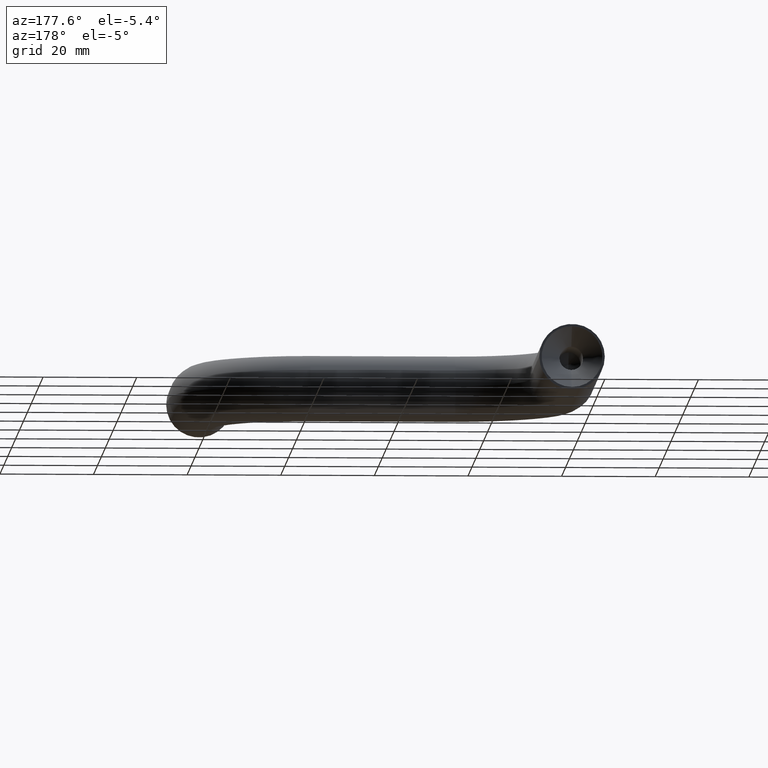
[diagram: clean part render]
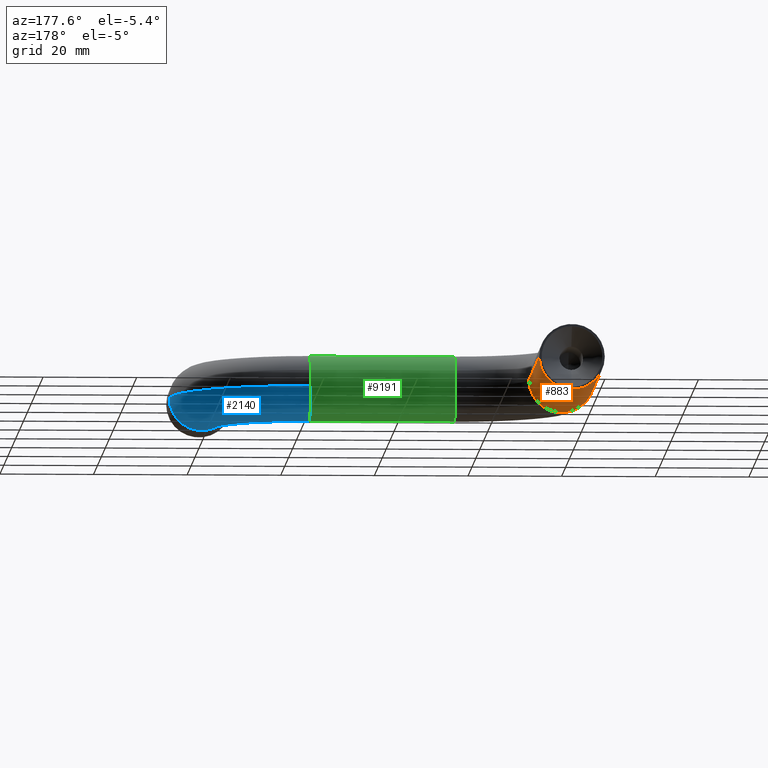
[diagram: same view with three faces highlighted in distinct colors, each labeled with its STEP entity id]
A machine part, auxiliary view with three faces highlighted in distinct colors.
Their STEP definitions:

[orange] entity #883 — the highlighted cylindrical surface (edge-blend (fillet) strip) has radius 7 mm, axis along (0, 1, 0).
#66 = AXIS2_PLACEMENT_3D ( 'NONE', #2268, #1301, #1258 ) ;
#221 = LINE ( 'NONE', #11476, #3020 ) ;
#359 = VERTEX_POINT ( 'NONE', #3684 ) ;
#683 = DIRECTION ( 'NONE',  ( 0.0000000000000000000, 0.0000000000000000000, 1.000000000000000000 ) ) ;
#883 = ADVANCED_FACE ( 'NONE', ( #11358 ), #1655, .T. ) ;
#1107 = VERTEX_POINT ( 'NONE', #9374 ) ;
#1258 = DIRECTION ( 'NONE',  ( -1.000000000000000000, 0.0000000000000000000, 0.0000000000000000000 ) ) ;
#1301 = DIRECTION ( 'NONE',  ( 2.618450529776312300E-016, 1.000000000000000000, 0.0000000000000000000 ) ) ;
#1397 = EDGE_CURVE ( 'NONE', #6293, #1990, #4423, .T. ) ;
#1655 = CYLINDRICAL_SURFACE ( 'NONE', #66, 7.000000000000006200 ) ;
#1746 = EDGE_CURVE ( 'NONE', #1107, #1990, #9575, .T. ) ;
#1842 = CARTESIAN_POINT ( 'NONE',  ( -81.99999999999997200, 112.4999999999999900, 0.0000000000000000000 ) ) ;
#1990 = VERTEX_POINT ( 'NONE', #1842 ) ;
#2125 = CIRCLE ( 'NONE', #9813, 7.000000000000000000 ) ;
#2268 = CARTESIAN_POINT ( 'NONE',  ( -74.99999999999998600, 59.49999999999998600, 0.0000000000000000000 ) ) ;
#2887 = AXIS2_PLACEMENT_3D ( 'NONE', #12515, #10519, #8529 ) ;
#3020 = VECTOR ( 'NONE', #6181, 1000.000000000000000 ) ;
#3684 = CARTESIAN_POINT ( 'NONE',  ( -67.99999999999997200, 59.49999999999998600, 8.572527594031463300E-016 ) ) ;
#4181 = EDGE_LOOP ( 'NONE', ( #10737, #13306, #8523, #13182 ) ) ;
#4423 = LINE ( 'NONE', #13014, #12332 ) ;
#6181 = DIRECTION ( 'NONE',  ( 2.618450529776312300E-016, 1.000000000000000000, 0.0000000000000000000 ) ) ;
#6293 = VERTEX_POINT ( 'NONE', #8088 ) ;
#8042 = EDGE_CURVE ( 'NONE', #359, #6293, #2125, .T. ) ;
#8088 = CARTESIAN_POINT ( 'NONE',  ( -81.99999999999998600, 59.49999999999998600, 0.0000000000000000000 ) ) ;
#8523 = ORIENTED_EDGE ( 'NONE', *, *, #1397, .T. ) ;
#8529 = DIRECTION ( 'NONE',  ( 0.0000000000000000000, 0.0000000000000000000, 1.000000000000000000 ) ) ;
#8828 = DIRECTION ( 'NONE',  ( 2.618450529776312300E-016, 1.000000000000000000, 0.0000000000000000000 ) ) ;
#9115 = CARTESIAN_POINT ( 'NONE',  ( -74.99999999999998600, 59.49999999999998600, 0.0000000000000000000 ) ) ;
#9374 = CARTESIAN_POINT ( 'NONE',  ( -67.99999999999995700, 112.4999999999999900, 8.572527594031480100E-016 ) ) ;
#9575 = CIRCLE ( 'NONE', #2887, 7.000000000000000000 ) ;
#9813 = AXIS2_PLACEMENT_3D ( 'NONE', #9115, #11101, #683 ) ;
#10519 = DIRECTION ( 'NONE',  ( -2.220446049250313100E-016, 1.000000000000000000, 0.0000000000000000000 ) ) ;
#10737 = ORIENTED_EDGE ( 'NONE', *, *, #12192, .F. ) ;
#11101 = DIRECTION ( 'NONE',  ( -2.220446049250313100E-016, 1.000000000000000000, 0.0000000000000000000 ) ) ;
#11358 = FACE_OUTER_BOUND ( 'NONE', #4181, .T. ) ;
#11476 = CARTESIAN_POINT ( 'NONE',  ( -67.99999999999997200, 59.49999999999998600, 8.572527594031471200E-016 ) ) ;
#12192 = EDGE_CURVE ( 'NONE', #359, #1107, #221, .T. ) ;
#12332 = VECTOR ( 'NONE', #8828, 1000.000000000000000 ) ;
#12515 = CARTESIAN_POINT ( 'NONE',  ( -74.99999999999997200, 112.4999999999999900, 0.0000000000000000000 ) ) ;
#13014 = CARTESIAN_POINT ( 'NONE',  ( -81.99999999999998600, 59.49999999999998600, 0.0000000000000000000 ) ) ;
#13182 = ORIENTED_EDGE ( 'NONE', *, *, #1746, .F. ) ;
#13306 = ORIENTED_EDGE ( 'NONE', *, *, #8042, .T. ) ;

[blue] entity #2140 — the highlighted toroidal blend (fillet) surface has major radius 22 mm and minor (blend) radius 7 mm.
#42 = DIRECTION ( 'NONE',  ( -1.000000000000000000, -1.608122649676636600E-016, 0.0000000000000000000 ) ) ;
#117 = VERTEX_POINT ( 'NONE', #11253 ) ;
#126 = ORIENTED_EDGE ( 'NONE', *, *, #10932, .F. ) ;
#173 = AXIS2_PLACEMENT_3D ( 'NONE', #8949, #782, #12112 ) ;
#325 = AXIS2_PLACEMENT_3D ( 'NONE', #10674, #1445, #11765 ) ;
#782 = DIRECTION ( 'NONE',  ( 0.0000000000000000000, 0.0000000000000000000, 1.000000000000000000 ) ) ;
#1251 = EDGE_CURVE ( 'NONE', #11029, #5518, #6324, .T. ) ;
#1445 = DIRECTION ( 'NONE',  ( -1.000000000000000000, -1.608122649676636600E-016, 0.0000000000000000000 ) ) ;
#1639 = CARTESIAN_POINT ( 'NONE',  ( -7.000000000000000000, 15.50000000000000000, 8.572527594031473200E-016 ) ) ;
#2140 = ADVANCED_FACE ( 'NONE', ( #12769 ), #5191, .T. ) ;
#3224 = CARTESIAN_POINT ( 'NONE',  ( -22.00000000000000400, 30.50000000000000700, -8.572527594031470200E-016 ) ) ;
#3308 = ORIENTED_EDGE ( 'NONE', *, *, #1251, .F. ) ;
#3814 = DIRECTION ( 'NONE',  ( 0.0000000000000000000, 0.0000000000000000000, 1.000000000000000000 ) ) ;
#3854 = DIRECTION ( 'NONE',  ( 1.000000000000000000, 0.0000000000000000000, 0.0000000000000000000 ) ) ;
#4342 = ORIENTED_EDGE ( 'NONE', *, *, #10134, .T. ) ;
#4668 = DIRECTION ( 'NONE',  ( 0.0000000000000000000, 0.0000000000000000000, 1.000000000000000000 ) ) ;
#5015 = CARTESIAN_POINT ( 'NONE',  ( -6.404881882659701700E-017, 15.50000000000000000, 0.0000000000000000000 ) ) ;
#5191 = TOROIDAL_SURFACE ( 'NONE', #10983, 22.00000000000000000, 7.000000000000000000 ) ;
#5284 = CIRCLE ( 'NONE', #10784, 7.000000000000000000 ) ;
#5391 = ORIENTED_EDGE ( 'NONE', *, *, #5645, .T. ) ;
#5518 = VERTEX_POINT ( 'NONE', #6062 ) ;
#5584 = CARTESIAN_POINT ( 'NONE',  ( -22.00000000000000000, 15.50000000000000000, -8.572527594031473200E-016 ) ) ;
#5602 = CIRCLE ( 'NONE', #173, 28.99999999999999600 ) ;
#5645 = EDGE_CURVE ( 'NONE', #117, #11387, #6001, .T. ) ;
#6001 = CIRCLE ( 'NONE', #9793, 7.000000000000000000 ) ;
#6062 = CARTESIAN_POINT ( 'NONE',  ( -22.00000000000000400, 37.50000000000000700, -7.000000000000000000 ) ) ;
#6324 = CIRCLE ( 'NONE', #325, 7.000000000000000000 ) ;
#6892 = VERTEX_POINT ( 'NONE', #3224 ) ;
#8158 = CARTESIAN_POINT ( 'NONE',  ( -22.00000000000000400, 37.50000000000000700, 0.0000000000000000000 ) ) ;
#8285 = CIRCLE ( 'NONE', #11808, 15.00000000000000000 ) ;
#8643 = ORIENTED_EDGE ( 'NONE', *, *, #11602, .F. ) ;
#8949 = CARTESIAN_POINT ( 'NONE',  ( -22.00000000000000000, 15.50000000000000000, 0.0000000000000000000 ) ) ;
#9793 = AXIS2_PLACEMENT_3D ( 'NONE', #5015, #10020, #11057 ) ;
#10020 = DIRECTION ( 'NONE',  ( 0.0000000000000000000, 1.000000000000000000, 0.0000000000000000000 ) ) ;
#10134 = EDGE_CURVE ( 'NONE', #11387, #6892, #8285, .T. ) ;
#10210 = CARTESIAN_POINT ( 'NONE',  ( -22.00000000000000400, 44.50000000000000000, 0.0000000000000000000 ) ) ;
#10521 = EDGE_LOOP ( 'NONE', ( #126, #5391, #4342, #8643, #3308 ) ) ;
#10674 = CARTESIAN_POINT ( 'NONE',  ( -22.00000000000000400, 37.50000000000000700, 0.0000000000000000000 ) ) ;
#10784 = AXIS2_PLACEMENT_3D ( 'NONE', #8158, #42, #13436 ) ;
#10932 = EDGE_CURVE ( 'NONE', #117, #11029, #5602, .T. ) ;
#10956 = CARTESIAN_POINT ( 'NONE',  ( -22.00000000000000000, 15.50000000000000000, 0.0000000000000000000 ) ) ;
#10983 = AXIS2_PLACEMENT_3D ( 'NONE', #10956, #3814, #3854 ) ;
#11029 = VERTEX_POINT ( 'NONE', #10210 ) ;
#11057 = DIRECTION ( 'NONE',  ( 0.0000000000000000000, 0.0000000000000000000, 1.000000000000000000 ) ) ;
#11253 = CARTESIAN_POINT ( 'NONE',  ( 7.000000000000000000, 15.50000000000000000, 0.0000000000000000000 ) ) ;
#11387 = VERTEX_POINT ( 'NONE', #1639 ) ;
#11602 = EDGE_CURVE ( 'NONE', #5518, #6892, #5284, .T. ) ;
#11765 = DIRECTION ( 'NONE',  ( 0.0000000000000000000, 0.0000000000000000000, 1.000000000000000000 ) ) ;
#11808 = AXIS2_PLACEMENT_3D ( 'NONE', #5584, #4668, #11884 ) ;
#11884 = DIRECTION ( 'NONE',  ( 1.000000000000000000, 0.0000000000000000000, 0.0000000000000000000 ) ) ;
#12112 = DIRECTION ( 'NONE',  ( 1.000000000000000000, 0.0000000000000000000, 0.0000000000000000000 ) ) ;
#12769 = FACE_OUTER_BOUND ( 'NONE', #10521, .T. ) ;
#13436 = DIRECTION ( 'NONE',  ( 0.0000000000000000000, 0.0000000000000000000, 1.000000000000000000 ) ) ;

[green] entity #9191 — the highlighted cylindrical surface (edge-blend (fillet) strip) has radius 7 mm, axis along (-1, 0, 0).
#271 = DIRECTION ( 'NONE',  ( -1.000000000000000000, 0.0000000000000000000, 0.0000000000000000000 ) ) ;
#325 = AXIS2_PLACEMENT_3D ( 'NONE', #10674, #1445, #11765 ) ;
#564 = CARTESIAN_POINT ( 'NONE',  ( -53.00000000000000000, 37.50000000000000700, 0.0000000000000000000 ) ) ;
#693 = ORIENTED_EDGE ( 'NONE', *, *, #10103, .T. ) ;
#697 = ORIENTED_EDGE ( 'NONE', *, *, #3331, .F. ) ;
#834 = DIRECTION ( 'NONE',  ( -1.000000000000000000, -1.608122649676636600E-016, 0.0000000000000000000 ) ) ;
#1187 = VERTEX_POINT ( 'NONE', #3251 ) ;
#1251 = EDGE_CURVE ( 'NONE', #11029, #5518, #6324, .T. ) ;
#1445 = DIRECTION ( 'NONE',  ( -1.000000000000000000, -1.608122649676636600E-016, 0.0000000000000000000 ) ) ;
#1660 = LINE ( 'NONE', #4433, #12648 ) ;
#1820 = AXIS2_PLACEMENT_3D ( 'NONE', #3089, #834, #10305 ) ;
#1882 = EDGE_CURVE ( 'NONE', #12705, #3611, #7128, .T. ) ;
#2526 = ORIENTED_EDGE ( 'NONE', *, *, #1251, .T. ) ;
#3089 = CARTESIAN_POINT ( 'NONE',  ( -22.00000000000000400, 37.50000000000000700, 0.0000000000000000000 ) ) ;
#3176 = ORIENTED_EDGE ( 'NONE', *, *, #3843, .F. ) ;
#3251 = CARTESIAN_POINT ( 'NONE',  ( -22.00000000000000400, 37.50000000000000700, 7.000000000000000000 ) ) ;
#3331 = EDGE_CURVE ( 'NONE', #1187, #3371, #12756, .T. ) ;
#3371 = VERTEX_POINT ( 'NONE', #5897 ) ;
#3397 = AXIS2_PLACEMENT_3D ( 'NONE', #12493, #4200, #10464 ) ;
#3611 = VERTEX_POINT ( 'NONE', #8356 ) ;
#3651 = DIRECTION ( 'NONE',  ( -1.000000000000000000, -1.608122649676636600E-016, 0.0000000000000000000 ) ) ;
#3843 = EDGE_CURVE ( 'NONE', #3371, #12705, #4617, .T. ) ;
#4200 = DIRECTION ( 'NONE',  ( -1.000000000000000000, -1.608122649676636600E-016, 0.0000000000000000000 ) ) ;
#4226 = CARTESIAN_POINT ( 'NONE',  ( -22.00000000000000400, 37.50000000000000700, 0.0000000000000000000 ) ) ;
#4433 = CARTESIAN_POINT ( 'NONE',  ( -22.00000000000000400, 37.50000000000000700, -7.000000000000000000 ) ) ;
#4555 = CARTESIAN_POINT ( 'NONE',  ( -22.00000000000000400, 37.50000000000000700, 7.000000000000000000 ) ) ;
#4617 = CIRCLE ( 'NONE', #3397, 7.000000000000000000 ) ;
#4840 = DIRECTION ( 'NONE',  ( 0.0000000000000000000, 0.0000000000000000000, 1.000000000000000000 ) ) ;
#5518 = VERTEX_POINT ( 'NONE', #6062 ) ;
#5897 = CARTESIAN_POINT ( 'NONE',  ( -53.00000000000000000, 37.50000000000000700, 7.000000000000000000 ) ) ;
#5988 = CIRCLE ( 'NONE', #1820, 7.000000000000000000 ) ;
#6037 = EDGE_LOOP ( 'NONE', ( #8262, #2526, #693, #6499, #3176, #697 ) ) ;
#6062 = CARTESIAN_POINT ( 'NONE',  ( -22.00000000000000400, 37.50000000000000700, -7.000000000000000000 ) ) ;
#6324 = CIRCLE ( 'NONE', #325, 7.000000000000000000 ) ;
#6499 = ORIENTED_EDGE ( 'NONE', *, *, #1882, .F. ) ;
#6512 = CYLINDRICAL_SURFACE ( 'NONE', #8860, 7.000000000000000000 ) ;
#6613 = CARTESIAN_POINT ( 'NONE',  ( -53.00000000000000000, 44.50000000000000700, 8.572527594031474200E-016 ) ) ;
#7128 = CIRCLE ( 'NONE', #12631, 7.000000000000000000 ) ;
#7267 = VECTOR ( 'NONE', #11954, 1000.000000000000000 ) ;
#7562 = EDGE_CURVE ( 'NONE', #1187, #11029, #5988, .T. ) ;
#8262 = ORIENTED_EDGE ( 'NONE', *, *, #7562, .T. ) ;
#8356 = CARTESIAN_POINT ( 'NONE',  ( -53.00000000000000000, 37.50000000000000700, -7.000000000000000000 ) ) ;
#8860 = AXIS2_PLACEMENT_3D ( 'NONE', #4226, #12479, #9293 ) ;
#9191 = ADVANCED_FACE ( 'NONE', ( #11046 ), #6512, .T. ) ;
#9293 = DIRECTION ( 'NONE',  ( 0.0000000000000000000, 0.0000000000000000000, 1.000000000000000000 ) ) ;
#10103 = EDGE_CURVE ( 'NONE', #5518, #3611, #1660, .T. ) ;
#10210 = CARTESIAN_POINT ( 'NONE',  ( -22.00000000000000400, 44.50000000000000000, 0.0000000000000000000 ) ) ;
#10305 = DIRECTION ( 'NONE',  ( 0.0000000000000000000, 0.0000000000000000000, 1.000000000000000000 ) ) ;
#10464 = DIRECTION ( 'NONE',  ( 0.0000000000000000000, 0.0000000000000000000, 1.000000000000000000 ) ) ;
#10674 = CARTESIAN_POINT ( 'NONE',  ( -22.00000000000000400, 37.50000000000000700, 0.0000000000000000000 ) ) ;
#11029 = VERTEX_POINT ( 'NONE', #10210 ) ;
#11046 = FACE_OUTER_BOUND ( 'NONE', #6037, .T. ) ;
#11765 = DIRECTION ( 'NONE',  ( 0.0000000000000000000, 0.0000000000000000000, 1.000000000000000000 ) ) ;
#11954 = DIRECTION ( 'NONE',  ( -1.000000000000000000, 0.0000000000000000000, 0.0000000000000000000 ) ) ;
#12479 = DIRECTION ( 'NONE',  ( -1.000000000000000000, 0.0000000000000000000, 0.0000000000000000000 ) ) ;
#12493 = CARTESIAN_POINT ( 'NONE',  ( -53.00000000000000000, 37.50000000000000700, 0.0000000000000000000 ) ) ;
#12631 = AXIS2_PLACEMENT_3D ( 'NONE', #564, #3651, #4840 ) ;
#12648 = VECTOR ( 'NONE', #271, 1000.000000000000000 ) ;
#12705 = VERTEX_POINT ( 'NONE', #6613 ) ;
#12756 = LINE ( 'NONE', #4555, #7267 ) ;